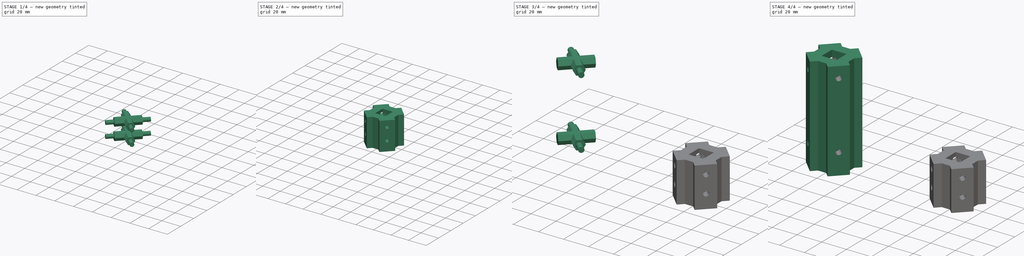
[diagram: build sequence overview — one tinted view per stage of 4, left to right]
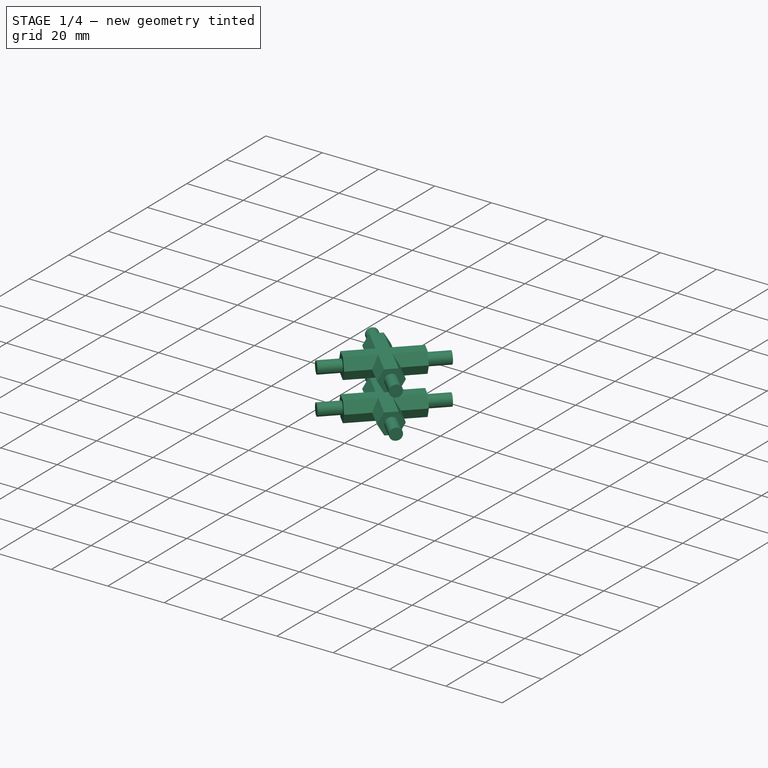
[diagram: stage 1 of 4 — iso view after this stage's code; geometry added in this stage tinted green]
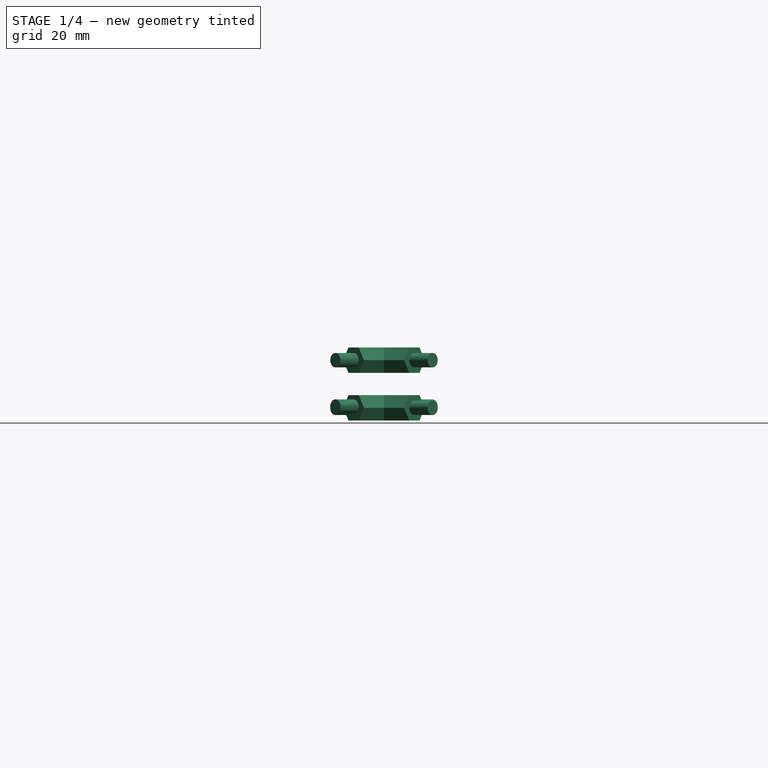
[diagram: stage 1 of 4 — front view after this stage's code; geometry added in this stage tinted green]
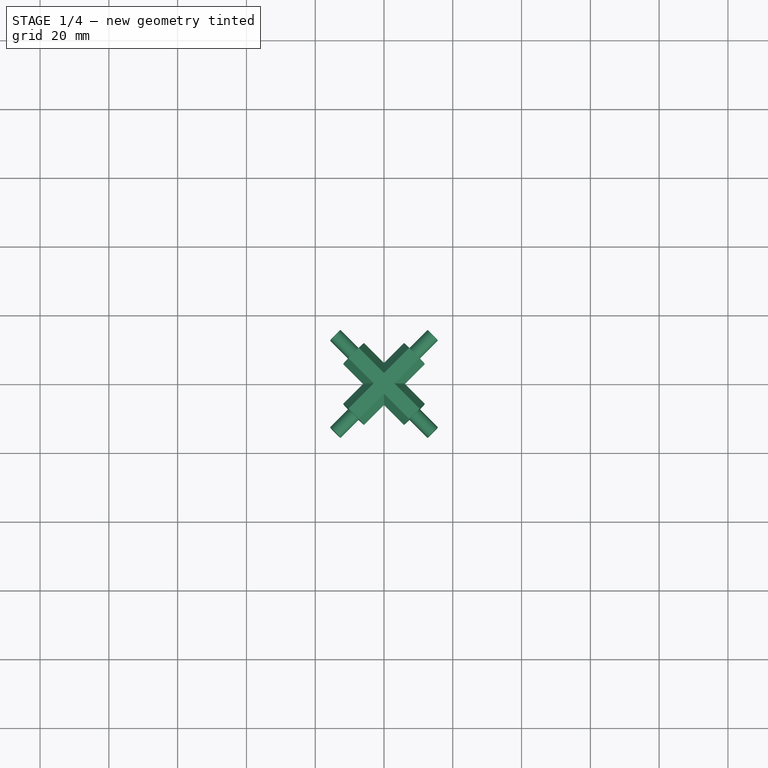
[diagram: stage 1 of 4 — top view after this stage's code; geometry added in this stage tinted green]
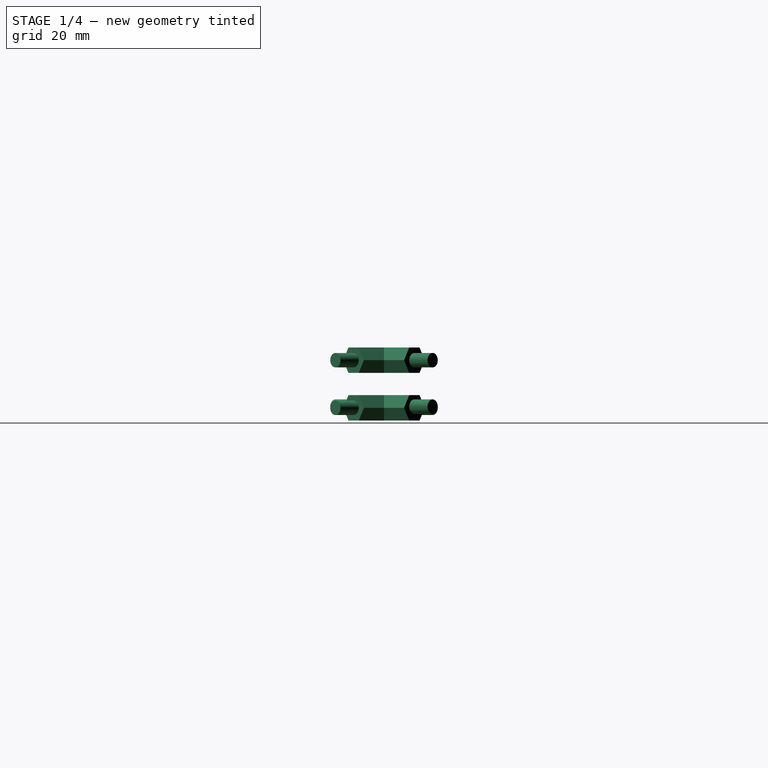
[diagram: stage 1 of 4 — right view after this stage's code; geometry added in this stage tinted green]
FCSTD DOCUMENT  (FreeCAD 0.15R4671 (Git))
Label: socles
License: All rights reserved
LicenseURL: http://fr.wikipedia.org/wiki/<copyright redacted>
objects: Sketcher::SketchObject×10, PartDesign::Pad×10, Part::MultiFuse×2, Part::Cut×2
note: 34 computed .brp shape members not serialized (recipe doc carries the construction recipe); baked Part::Feature solids carry a one-line shape summary decoded from their .brp

FEATURE [Sketcher::SketchObject] Sketch016
  Placement = pos=(100,0,0) rot=(0.862856,-0.357407,-0.357407;1.71777rad)
  sketch-geometry (2):
    g0: Circle CenterX=0 CenterY=25 CenterZ=0 NormalX=0 NormalY=0 NormalZ=1 Radius=2.1
    g1: Circle CenterX=0 CenterY=11.5 CenterZ=0 NormalX=0 NormalY=0 NormalZ=1 Radius=2.1
  constraints (6):
    c: Radius(g0) = 2.1
    c: PointOnObject(g0,g-2)
    c: DistanceY(g-1,g0) = 25
    c: PointOnObject(g1,g-2)
    c: DistanceY(g-1,g1) = 11.5
    c: Equal(g1,g0)
FEATURE [PartDesign::Pad] Pad016
  Length = 40
  Length2 = 100
  Midplane = true
  Placement = pos=(100,0,0) rot=(0.862856,-0.357407,-0.357407;1.71777rad)
  Sketch = -> Sketch016
  Type = 0
FEATURE [Sketcher::SketchObject] Sketch017
  Placement = pos=(100,0,0) rot=(0.862856,-0.357407,-0.357407;1.71777rad)
  sketch-geometry (14):
    g0: LineSegment StartX=2.125 StartY=7.46939 StartZ=0 EndX=4.25 EndY=11.15 EndZ=0
    g1: LineSegment StartX=4.25 StartY=11.15 StartZ=0 EndX=2.125 EndY=14.8306 EndZ=0
    g2: LineSegment StartX=2.125 StartY=14.8306 StartZ=0 EndX=-2.125 EndY=14.8306 EndZ=0
    g3: LineSegment StartX=-2.125 StartY=14.8306 StartZ=0 EndX=-4.25 EndY=11.15 EndZ=0
    g4: LineSegment StartX=-4.25 StartY=11.15 StartZ=0 EndX=-2.125 EndY=7.46939 EndZ=0
    g5: LineSegment StartX=-2.125 StartY=7.46939 StartZ=0 EndX=2.125 EndY=7.46939 EndZ=0
    g6: Circle [constr] CenterX=0 CenterY=11.15 CenterZ=0 NormalX=0 NormalY=0 NormalZ=1 Radius=4.25
    g7: LineSegment StartX=2.125 StartY=21.3194 StartZ=0 EndX=4.25 EndY=25 EndZ=0
    g8: LineSegment StartX=4.25 StartY=25 StartZ=0 EndX=2.125 EndY=28.6806 EndZ=0
    g9: LineSegment StartX=2.125 StartY=28.6806 StartZ=0 EndX=-2.125 EndY=28.6806 EndZ=0
    g10: LineSegment StartX=-2.125 StartY=28.6806 StartZ=0 EndX=-4.25 EndY=25 EndZ=0
    g11: LineSegment StartX=-4.25 StartY=25 StartZ=0 EndX=-2.125 EndY=21.3194 EndZ=0
    g12: LineSegment StartX=-2.125 StartY=21.3194 StartZ=0 EndX=2.125 EndY=21.3194 EndZ=0
    g13: Circle [constr] CenterX=0 CenterY=25 CenterZ=0 NormalX=0 NormalY=0 NormalZ=1 Radius=4.25
  constraints (35):
    c: Coincident(g0,g1)
    c: Coincident(g1,g2)
    c: Coincident(g2,g3)
    c: Coincident(g3,g4)
    c: Coincident(g4,g5)
    c: Coincident(g5,g0)
    c: Equal(g0, g1-g5) x5
    c: PointOnObject(g0,g6)
    c: PointOnObject(g1,g6)
    c: PointOnObject(g2,g6)
    c: PointOnObject(g3,g6)
    c: PointOnObject(g4,g6)
    c: PointOnObject(g5,g6)
    c: PointOnObject(g3,g-2)
    c: Horizontal(g5)
    c: PointOnObject(g6,g-2)
    c: Distance(g1,g6) = 4.25
    c: DistanceY(g-1,g6) = 11.15
    c: Coincident(g7,g8)
    c: Coincident(g8,g9)
    c: Coincident(g9,g10)
    c: Coincident(g10,g11)
    c: Coincident(g11,g12)
    c: Coincident(g12,g7)
    c: Equal(g7, g8-g12) x5
    c: PointOnObject(g7,g13)
    c: PointOnObject(g8,g13)
    c: PointOnObject(g9,g13)
    c: PointOnObject(g10,g13)
    c: PointOnObject(g11,g13)
    c: PointOnObject(g12,g13)
    c: Horizontal(g12)
    c: Distance(g13,g8) = 4.25
    c: PointOnObject(g13,g-2)
    c: DistanceY(g-1,g13) = 25
FEATURE [PartDesign::Pad] Pad017
  Length = 25
  Length2 = 100
  Midplane = true
  Placement = pos=(100,0,0) rot=(0.862856,-0.357407,-0.357407;1.71777rad)
  Sketch = -> Sketch017
  Type = 0
FEATURE [Sketcher::SketchObject] Sketch018
  Placement = pos=(100,0,0) rot=(0.862856,0.357407,0.357407;1.71777rad)
  sketch-geometry (2):
    g0: Circle CenterX=0 CenterY=25 CenterZ=0 NormalX=0 NormalY=0 NormalZ=1 Radius=2.1
    g1: Circle CenterX=0 CenterY=11.15 CenterZ=0 NormalX=0 NormalY=0 NormalZ=1 Radius=2.1
  constraints (6):
    c: Radius(g0) = 2.1
    c: PointOnObject(g0,g-2)
    c: DistanceY(g-1,g0) = 25
    c: PointOnObject(g1,g-2)
    c: DistanceY(g-1,g1) = 11.15
    c: Equal(g1,g0)
FEATURE [PartDesign::Pad] Pad018
  Length = 40
  Length2 = 100
  Midplane = true
  Placement = pos=(100,0,0) rot=(0.862856,0.357407,0.357407;1.71777rad)
  Sketch = -> Sketch018
  Type = 0
FEATURE [Sketcher::SketchObject] Sketch019
  Placement = pos=(100,0,0) rot=(0.862856,0.357407,0.357407;1.71777rad)
  sketch-geometry (14):
    g0: LineSegment StartX=2.125 StartY=7.46939 StartZ=0 EndX=4.25 EndY=11.15 EndZ=0
    g1: LineSegment StartX=4.25 StartY=11.15 StartZ=0 EndX=2.125 EndY=14.8306 EndZ=0
    g2: LineSegment StartX=2.125 StartY=14.8306 StartZ=0 EndX=-2.125 EndY=14.8306 EndZ=0
    g3: LineSegment StartX=-2.125 StartY=14.8306 StartZ=0 EndX=-4.25 EndY=11.15 EndZ=0
    g4: LineSegment StartX=-4.25 StartY=11.15 StartZ=0 EndX=-2.125 EndY=7.46939 EndZ=0
    g5: LineSegment StartX=-2.125 StartY=7.46939 StartZ=0 EndX=2.125 EndY=7.46939 EndZ=0
    g6: Circle [constr] CenterX=0 CenterY=11.15 CenterZ=0 NormalX=0 NormalY=0 NormalZ=1 Radius=4.25
    g7: LineSegment StartX=2.125 StartY=21.3194 StartZ=0 EndX=4.25 EndY=25 EndZ=0
    g8: LineSegment StartX=4.25 StartY=25 StartZ=0 EndX=2.125 EndY=28.6806 EndZ=0
    g9: LineSegment StartX=2.125 StartY=28.6806 StartZ=0 EndX=-2.125 EndY=28.6806 EndZ=0
    g10: LineSegment StartX=-2.125 StartY=28.6806 StartZ=0 EndX=-4.25 EndY=25 EndZ=0
    g11: LineSegment StartX=-4.25 StartY=25 StartZ=0 EndX=-2.125 EndY=21.3194 EndZ=0
    g12: LineSegment StartX=-2.125 StartY=21.3194 StartZ=0 EndX=2.125 EndY=21.3194 EndZ=0
    g13: Circle [constr] CenterX=0 CenterY=25 CenterZ=0 NormalX=0 NormalY=0 NormalZ=1 Radius=4.25
  constraints (35):
    c: Coincident(g0,g1)
    c: Coincident(g1,g2)
    c: Coincident(g2,g3)
    c: Coincident(g3,g4)
    c: Coincident(g4,g5)
    c: Coincident(g5,g0)
    c: Equal(g0, g1-g5) x5
    c: PointOnObject(g0,g6)
    c: PointOnObject(g1,g6)
    c: PointOnObject(g2,g6)
    c: PointOnObject(g3,g6)
    c: PointOnObject(g4,g6)
    c: PointOnObject(g5,g6)
    c: PointOnObject(g3,g-2)
    c: Horizontal(g5)
    c: PointOnObject(g6,g-2)
    c: Distance(g1,g6) = 4.25
    c: DistanceY(g-1,g6) = 11.15
    c: Coincident(g7,g8)
    c: Coincident(g8,g9)
    c: Coincident(g9,g10)
    c: Coincident(g10,g11)
    c: Coincident(g11,g12)
    c: Coincident(g12,g7)
    c: Equal(g7, g8-g12) x5
    c: PointOnObject(g7,g13)
    c: PointOnObject(g8,g13)
    c: PointOnObject(g9,g13)
    c: PointOnObject(g10,g13)
    c: PointOnObject(g11,g13)
    c: PointOnObject(g12,g13)
    c: Horizontal(g12)
    c: Distance(g8,g13) = 4.25
    c: PointOnObject(g13,g-2)
    c: DistanceY(g-1,g13) = 25
FEATURE [PartDesign::Pad] Pad019
  Length = 25
  Length2 = 100
  Midplane = true
  Placement = pos=(100,0,0) rot=(0.862856,0.357407,0.357407;1.71777rad)
  Sketch = -> Sketch019
  Type = 0
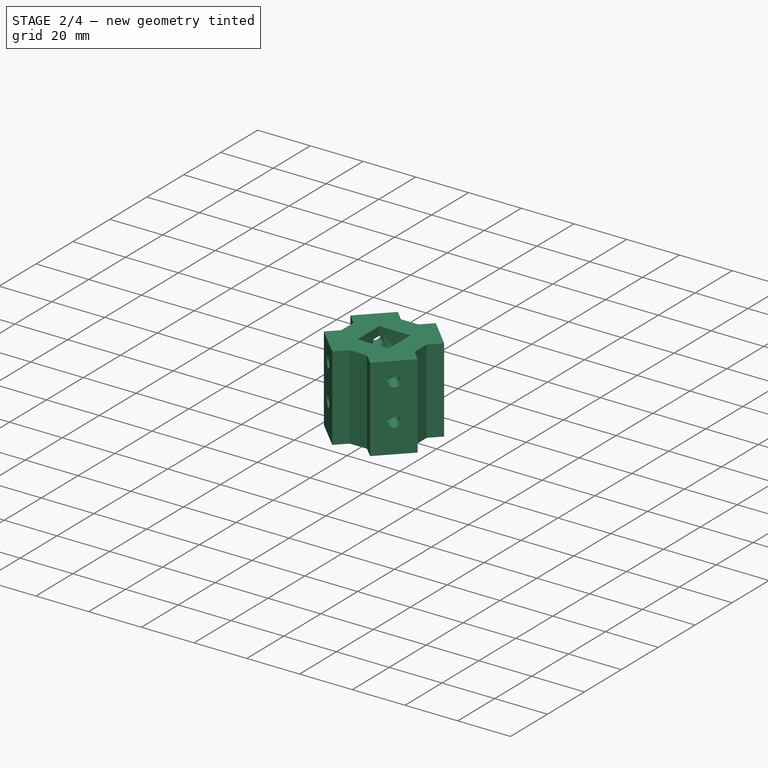
[diagram: stage 2 of 4 — iso view after this stage's code; geometry added in this stage tinted green]
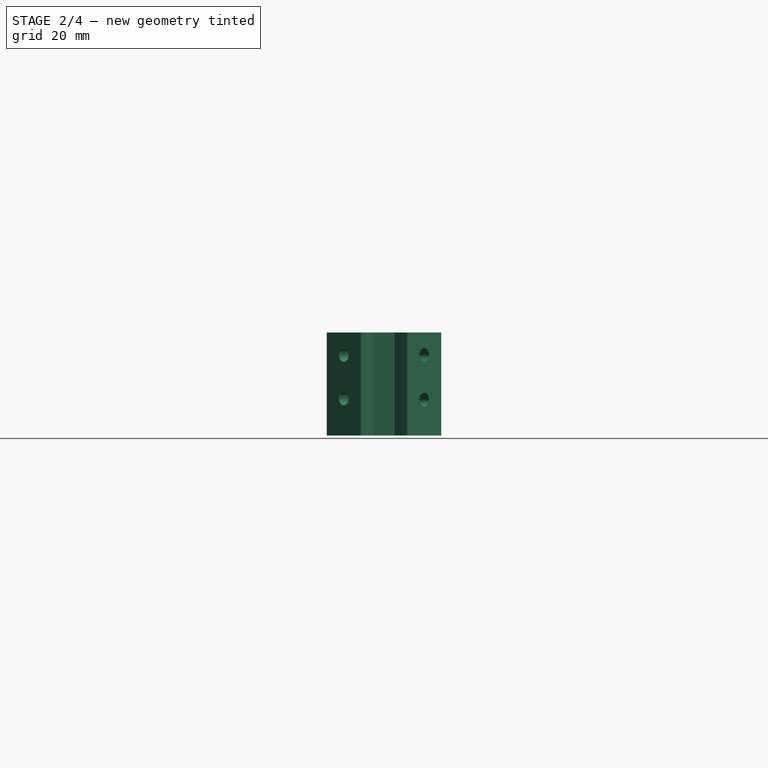
[diagram: stage 2 of 4 — front view after this stage's code; geometry added in this stage tinted green]
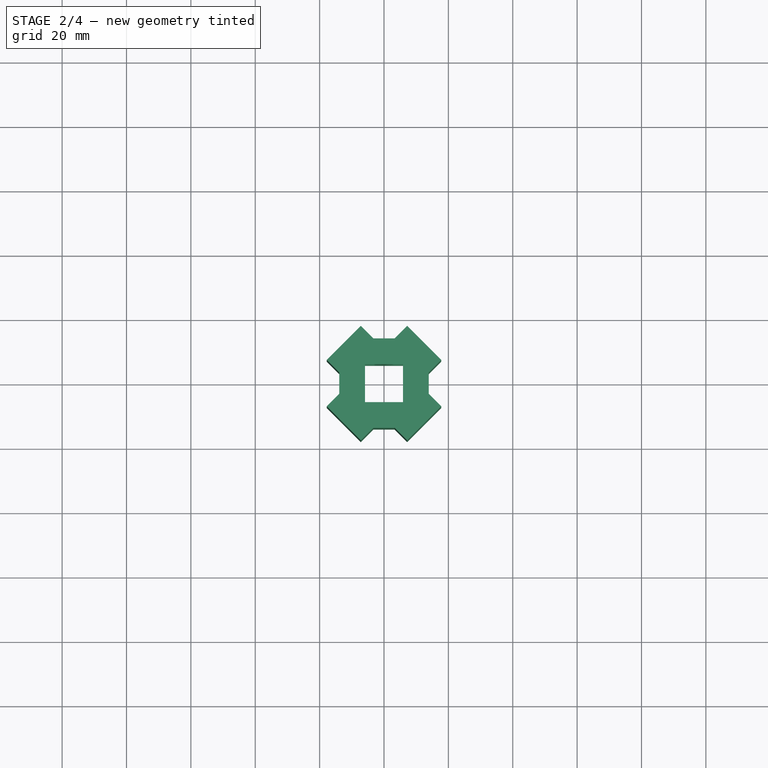
[diagram: stage 2 of 4 — top view after this stage's code; geometry added in this stage tinted green]
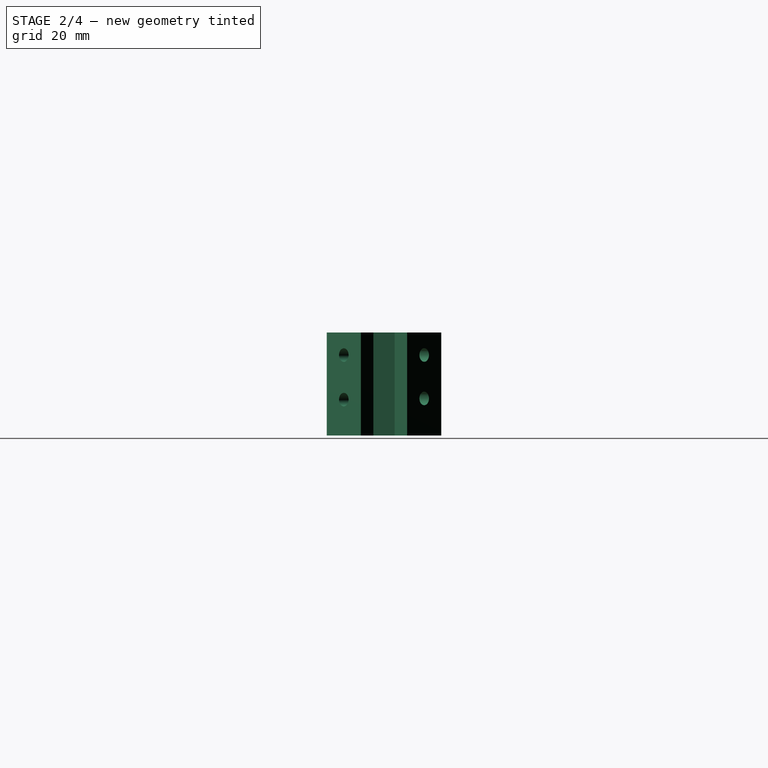
[diagram: stage 2 of 4 — right view after this stage's code; geometry added in this stage tinted green]
FEATURE [Sketcher::SketchObject] Sketch015
  Placement = pos=(100,0,0) rot=(0,0,1;0rad)
  sketch-geometry (20):
    g0: LineSegment StartX=-5.9 StartY=5.9 StartZ=0 EndX=5.9 EndY=5.9 EndZ=0
    g1: LineSegment StartX=5.9 StartY=5.9 StartZ=0 EndX=5.9 EndY=-5.9 EndZ=0
    g2: LineSegment StartX=5.9 StartY=-5.9 StartZ=0 EndX=-5.9 EndY=-5.9 EndZ=0
    g3: LineSegment StartX=-5.9 StartY=-5.9 StartZ=0 EndX=-5.9 EndY=5.9 EndZ=0
    g4: LineSegment StartX=-13.9 StartY=3.2934 StartZ=0 EndX=-13.9 EndY=-3.2934 EndZ=0
    g5: LineSegment StartX=-3.2934 StartY=-13.9 StartZ=0 EndX=3.2934 EndY=-13.9 EndZ=0
    g6: LineSegment StartX=13.9 StartY=-3.2934 StartZ=0 EndX=13.9 EndY=3.2934 EndZ=0
    g7: LineSegment StartX=3.2934 StartY=13.9 StartZ=0 EndX=-3.2934 EndY=13.9 EndZ=0
    g8: LineSegment StartX=-3.2934 StartY=13.9 StartZ=0 EndX=-7.18249 EndY=17.7891 EndZ=0
    g9: LineSegment StartX=-7.18249 StartY=17.7891 StartZ=0 EndX=-17.7891 EndY=7.18249 EndZ=0
    g10: LineSegment StartX=-17.7891 StartY=7.18249 StartZ=0 EndX=-13.9 EndY=3.2934 EndZ=0
    g11: LineSegment StartX=-13.9 StartY=-3.2934 StartZ=0 EndX=-17.7891 EndY=-7.18249 EndZ=0
    g12: LineSegment StartX=-17.7891 StartY=-7.18249 StartZ=0 EndX=-7.18249 EndY=-17.7891 EndZ=0
    g13: LineSegment StartX=-7.18249 StartY=-17.7891 StartZ=0 EndX=-3.2934 EndY=-13.9 EndZ=0
    g14: LineSegment StartX=3.2934 StartY=-13.9 StartZ=0 EndX=7.18249 EndY=-17.7891 EndZ=0
    g15: LineSegment StartX=7.18249 StartY=-17.7891 StartZ=0 EndX=17.7891 EndY=-7.18249 EndZ=0
    g16: LineSegment StartX=17.7891 StartY=-7.18249 StartZ=0 EndX=13.9 EndY=-3.2934 EndZ=0
    g17: LineSegment StartX=3.2934 StartY=13.9 StartZ=0 EndX=7.18249 EndY=17.7891 EndZ=0
    g18: LineSegment StartX=7.18249 StartY=17.7891 StartZ=0 EndX=17.7891 EndY=7.18249 EndZ=0
    g19: LineSegment StartX=13.9 StartY=3.2934 StartZ=0 EndX=17.7891 EndY=7.18249 EndZ=0
  constraints (60):
    c: Coincident(g0,g1)
    c: Coincident(g1,g2)
    c: Coincident(g2,g3)
    c: Coincident(g3,g0)
    c: Horizontal(g0)
    c: Vertical(g1)
    c: Vertical(g3)
    c: Symmetric(g1,g0,g-1)
    c: DistanceX(g0) = 11.8
    c: Vertical(g4)
    c: Horizontal(g5)
    c: Vertical(g6)
    c: Horizontal(g7)
    c: DistanceY(g7,g0) = -8
    c: DistanceY(g5,g2) = 8
    c: DistanceX(g2,g4) = -8
    c: DistanceX(g1,g6) = 8
    c: Equal(g5,g7)
    c: Equal(g7,g4)
    c: Equal(g4,g6)
    c: Coincident(g7,g8)
    c: Coincident(g8,g9)
    c: Coincident(g9,g10)
    c: Coincident(g10,g4)
    c: Coincident(g4,g11)
    c: Coincident(g11,g12)
    c: Coincident(g12,g13)
    c: Coincident(g13,g5)
    c: Coincident(g5,g14)
    c: Coincident(g14,g15)
    c: Coincident(g15,g16)
    c: Coincident(g16,g6)
    c: Coincident(g7,g17)
    c: Coincident(g17,g18)
    c: Coincident(g6,g19)
    c: Coincident(g19,g18)
    c: Distance(g9) = 15
    c: Distance(g10) = 5.5
    c: Equal(g0,g3)
    c: Equal(g3,g1)
    c: Equal(g1,g2)
    c: Symmetric(g7,g7,g-2)
    c: Perpendicular(g10,g9)
    c: Perpendicular(g8,g9)
    c: Perpendicular(g18,g17)
    c: Perpendicular(g18,g19)
    c: Perpendicular(g15,g16)
    c: Perpendicular(g15,g14)
    c: Perpendicular(g12,g13)
    c: Perpendicular(g12,g11)
    c: Equal(g10,g8)
    c: Equal(g8,g17)
    c: Equal(g17,g19)
    c: Equal(g19,g16)
    c: Equal(g16,g14)
    c: Equal(g14,g13)
    c: Equal(g13,g11)
    c: Equal(g9,g18)
    c: Equal(g18,g15)
    c: Equal(g15,g12)
FEATURE [PartDesign::Pad] Pad015
  Length = 32
  Length2 = 100
  Placement = pos=(100,0,0) rot=(0,0,1;0rad)
  Sketch = -> Sketch015
  Type = 0
FEATURE [Part::MultiFuse] Fusion002
  Shapes = -> [Pad016,Pad019,Pad018,Pad017]
FEATURE [Part::Cut] Cut003  label="petit_socle"
  Base = -> Pad015
  Placement = pos=(100,0,0) rot=(0,0,1;0rad)
  Tool = -> Fusion002
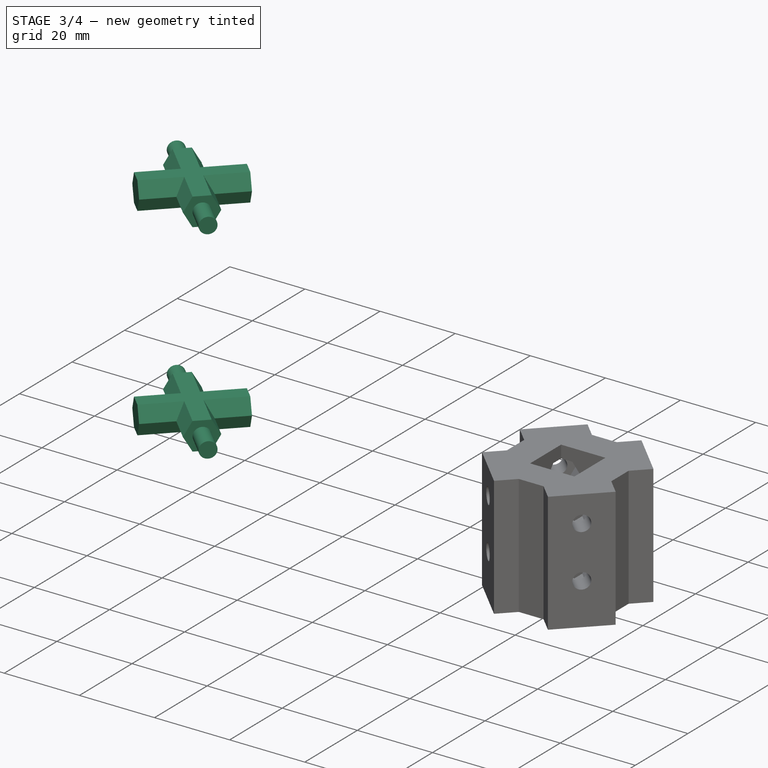
[diagram: stage 3 of 4 — iso view after this stage's code; geometry added in this stage tinted green]
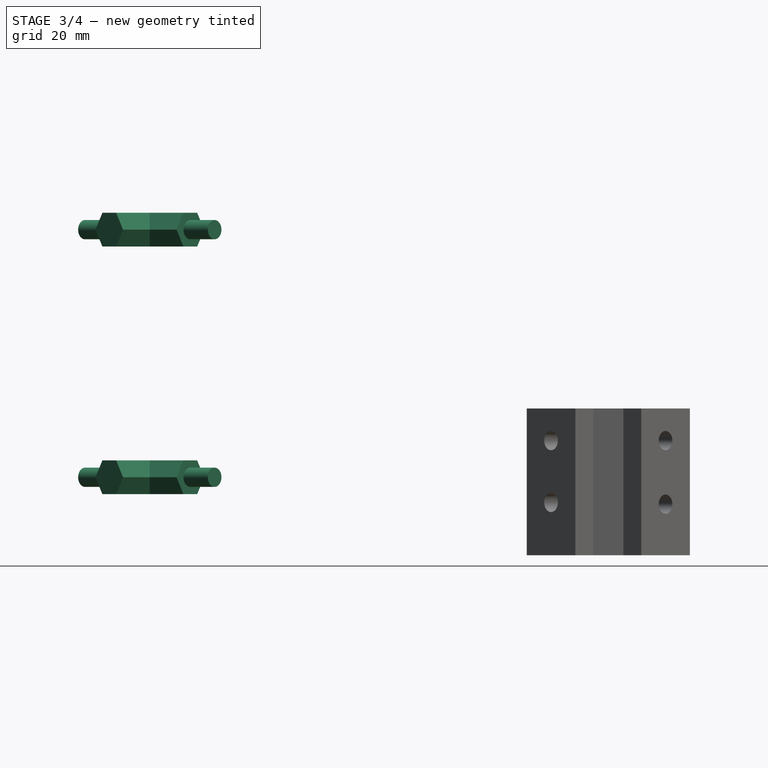
[diagram: stage 3 of 4 — front view after this stage's code; geometry added in this stage tinted green]
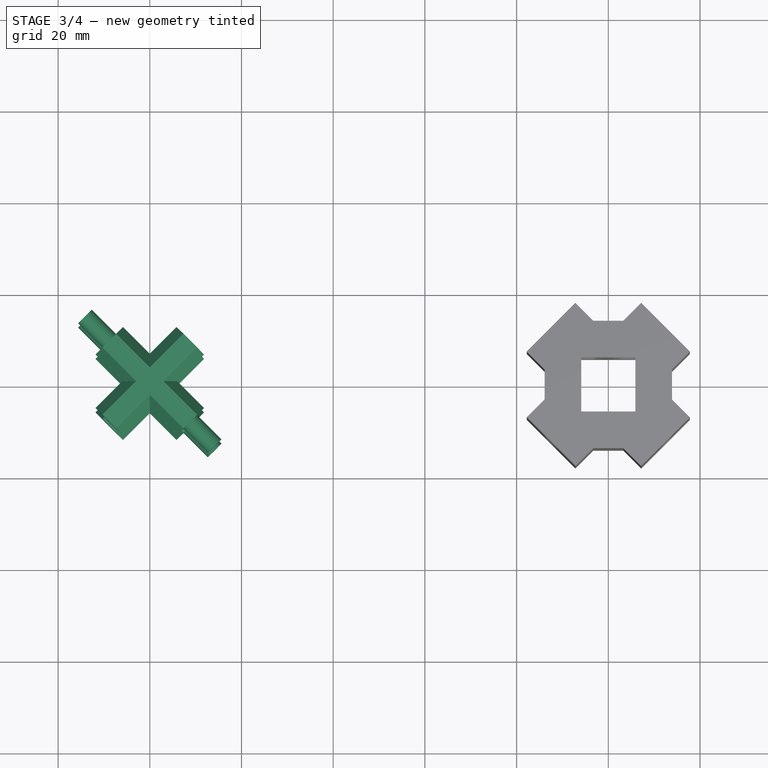
[diagram: stage 3 of 4 — top view after this stage's code; geometry added in this stage tinted green]
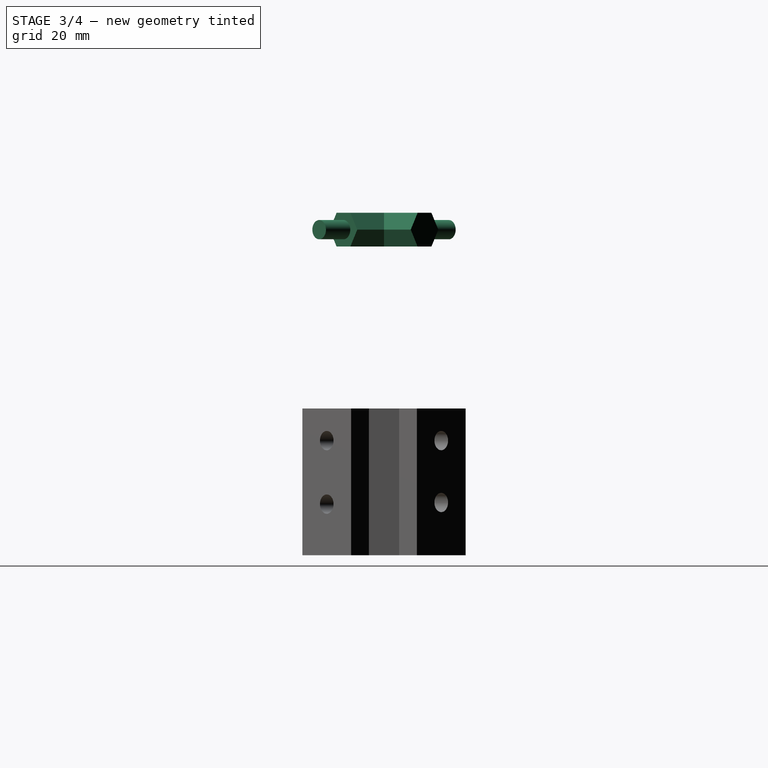
[diagram: stage 3 of 4 — right view after this stage's code; geometry added in this stage tinted green]
FEATURE [Sketcher::SketchObject] Sketch012
  Placement = pos=(100,0,0) rot=(0.862856,-0.357407,-0.357407;1.71777rad)
  sketch-geometry (14):
    g0: LineSegment StartX=2.125 StartY=67.3194 StartZ=0 EndX=4.25 EndY=71 EndZ=0
    g1: LineSegment StartX=4.25 StartY=71 StartZ=0 EndX=2.125 EndY=74.6806 EndZ=0
    g2: LineSegment StartX=2.125 StartY=74.6806 StartZ=0 EndX=-2.125 EndY=74.6806 EndZ=0
    g3: LineSegment StartX=-2.125 StartY=74.6806 StartZ=0 EndX=-4.25 EndY=71 EndZ=0
    g4: LineSegment StartX=-4.25 StartY=71 StartZ=0 EndX=-2.125 EndY=67.3194 EndZ=0
    g5: LineSegment StartX=-2.125 StartY=67.3194 StartZ=0 EndX=2.125 EndY=67.3194 EndZ=0
    g6: Circle [constr] CenterX=0 CenterY=71 CenterZ=0 NormalX=0 NormalY=0 NormalZ=1 Radius=4.25
    g7: LineSegment StartX=2.125 StartY=13.3194 StartZ=0 EndX=4.25 EndY=17 EndZ=0
    g8: LineSegment StartX=4.25 StartY=17 StartZ=0 EndX=2.125 EndY=20.6806 EndZ=0
    g9: LineSegment StartX=2.125 StartY=20.6806 StartZ=0 EndX=-2.125 EndY=20.6806 EndZ=0
    g10: LineSegment StartX=-2.125 StartY=20.6806 StartZ=0 EndX=-4.25 EndY=17 EndZ=0
    g11: LineSegment StartX=-4.25 StartY=17 StartZ=0 EndX=-2.125 EndY=13.3194 EndZ=0
    g12: LineSegment StartX=-2.125 StartY=13.3194 StartZ=0 EndX=2.125 EndY=13.3194 EndZ=0
    g13: Circle [constr] CenterX=0 CenterY=17 CenterZ=0 NormalX=0 NormalY=0 NormalZ=1 Radius=4.25
  constraints (36):
    c: Coincident(g0,g1)
    c: Coincident(g1,g2)
    c: Coincident(g2,g3)
    c: Coincident(g3,g4)
    c: Coincident(g4,g5)
    c: Coincident(g5,g0)
    c: Equal(g0, g1-g5) x5
    c: PointOnObject(g0,g6)
    c: PointOnObject(g1,g6)
    c: PointOnObject(g2,g6)
    c: PointOnObject(g3,g6)
    c: PointOnObject(g4,g6)
    c: PointOnObject(g5,g6)
    c: PointOnObject(g3,g-2)
    c: Horizontal(g5)
    c: PointOnObject(g6,g-2)
    c: Distance(g1,g6) = 4.25
    c: DistanceY(g-1,g6) = 71
    c: Coincident(g7,g8)
    c: Coincident(g8,g9)
    c: Coincident(g9,g10)
    c: Coincident(g10,g11)
    c: Coincident(g11,g12)
    c: Coincident(g12,g7)
    c: Equal(g7, g8-g12) x5
    c: PointOnObject(g7,g13)
    c: PointOnObject(g8,g13)
    c: PointOnObject(g9,g13)
    c: PointOnObject(g10,g13)
    c: PointOnObject(g11,g13)
    c: PointOnObject(g12,g13)
    c: PointOnObject(g10,g-2)
    c: Horizontal(g12)
    c: PointOnObject(g13,g-2)
    c: Distance(g8,g13) = 4.25
    c: DistanceY(g-1,g13) = 17
FEATURE [PartDesign::Pad] Pad012
  Length = 25
  Length2 = 100
  Midplane = true
  Placement = pos=(100,0,0) rot=(0.862856,-0.357407,-0.357407;1.71777rad)
  Sketch = -> Sketch012
  Type = 0
FEATURE [Sketcher::SketchObject] Sketch013
  Placement = pos=(100,0,0) rot=(0.862856,0.357407,0.357407;1.71777rad)
  sketch-geometry (2):
    g0: Circle CenterX=0 CenterY=71 CenterZ=0 NormalX=0 NormalY=0 NormalZ=1 Radius=2.1
    g1: Circle CenterX=0 CenterY=17 CenterZ=0 NormalX=0 NormalY=0 NormalZ=1 Radius=2.1
  constraints (6):
    c: Radius(g0) = 2.1
    c: PointOnObject(g0,g-2)
    c: DistanceY(g-1,g0) = 71
    c: PointOnObject(g1,g-2)
    c: DistanceY(g-1,g1) = 17
    c: Equal(g1,g0)
FEATURE [PartDesign::Pad] Pad013
  Length = 40
  Length2 = 100
  Midplane = true
  Placement = pos=(100,0,0) rot=(0.862856,0.357407,0.357407;1.71777rad)
  Sketch = -> Sketch013
  Type = 0
FEATURE [Sketcher::SketchObject] Sketch014
  Placement = pos=(100,0,0) rot=(0.862856,0.357407,0.357407;1.71777rad)
  sketch-geometry (14):
    g0: LineSegment StartX=2.125 StartY=67.3194 StartZ=0 EndX=4.25 EndY=71 EndZ=0
    g1: LineSegment StartX=4.25 StartY=71 StartZ=0 EndX=2.125 EndY=74.6806 EndZ=0
    g2: LineSegment StartX=2.125 StartY=74.6806 StartZ=0 EndX=-2.125 EndY=74.6806 EndZ=0
    g3: LineSegment StartX=-2.125 StartY=74.6806 StartZ=0 EndX=-4.25 EndY=71 EndZ=0
    g4: LineSegment StartX=-4.25 StartY=71 StartZ=0 EndX=-2.125 EndY=67.3194 EndZ=0
    g5: LineSegment StartX=-2.125 StartY=67.3194 StartZ=0 EndX=2.125 EndY=67.3194 EndZ=0
    g6: Circle [constr] CenterX=0 CenterY=71 CenterZ=0 NormalX=0 NormalY=0 NormalZ=1 Radius=4.25
    g7: LineSegment StartX=2.125 StartY=13.3194 StartZ=0 EndX=4.25 EndY=17 EndZ=0
    g8: LineSegment StartX=4.25 StartY=17 StartZ=0 EndX=2.125 EndY=20.6806 EndZ=0
    g9: LineSegment StartX=2.125 StartY=20.6806 StartZ=0 EndX=-2.125 EndY=20.6806 EndZ=0
    g10: LineSegment StartX=-2.125 StartY=20.6806 StartZ=0 EndX=-4.25 EndY=17 EndZ=0
    g11: LineSegment StartX=-4.25 StartY=17 StartZ=0 EndX=-2.125 EndY=13.3194 EndZ=0
    g12: LineSegment StartX=-2.125 StartY=13.3194 StartZ=0 EndX=2.125 EndY=13.3194 EndZ=0
    g13: Circle [constr] CenterX=0 CenterY=17 CenterZ=0 NormalX=0 NormalY=0 NormalZ=1 Radius=4.25
  constraints (36):
    c: Coincident(g0,g1)
    c: Coincident(g1,g2)
    c: Coincident(g2,g3)
    c: Coincident(g3,g4)
    c: Coincident(g4,g5)
    c: Coincident(g5,g0)
    c: Equal(g0, g1-g5) x5
    c: PointOnObject(g0,g6)
    c: PointOnObject(g1,g6)
    c: PointOnObject(g2,g6)
    c: PointOnObject(g3,g6)
    c: PointOnObject(g4,g6)
    c: PointOnObject(g5,g6)
    c: PointOnObject(g3,g-2)
    c: Horizontal(g5)
    c: PointOnObject(g6,g-2)
    c: Distance(g1,g6) = 4.25
    c: DistanceY(g-1,g6) = 71
    c: Coincident(g7,g8)
    c: Coincident(g8,g9)
    c: Coincident(g9,g10)
    c: Coincident(g10,g11)
    c: Coincident(g11,g12)
    c: Coincident(g12,g7)
    c: Equal(g7, g8-g12) x5
    c: PointOnObject(g7,g13)
    c: PointOnObject(g8,g13)
    c: PointOnObject(g9,g13)
    c: PointOnObject(g10,g13)
    c: PointOnObject(g11,g13)
    c: PointOnObject(g12,g13)
    c: PointOnObject(g10,g-2)
    c: Horizontal(g12)
    c: PointOnObject(g13,g-2)
    c: Distance(g8,g13) = 4.25
    c: DistanceY(g-1,g13) = 17
FEATURE [PartDesign::Pad] Pad014
  Length = 25
  Length2 = 100
  Midplane = true
  Placement = pos=(100,0,0) rot=(0.862856,0.357407,0.357407;1.71777rad)
  Sketch = -> Sketch014
  Type = 0
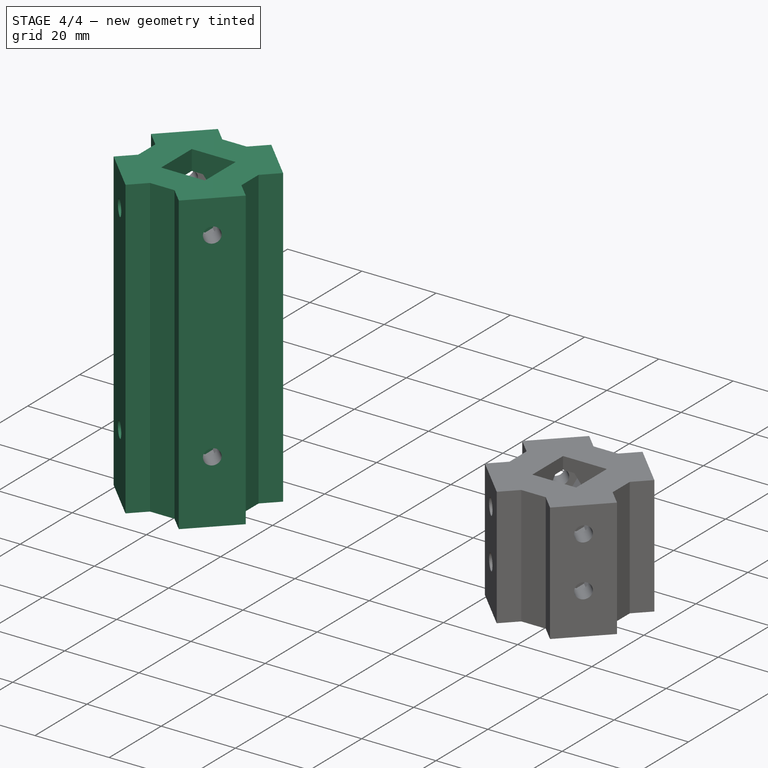
[diagram: stage 4 of 4 — iso view after this stage's code; geometry added in this stage tinted green]
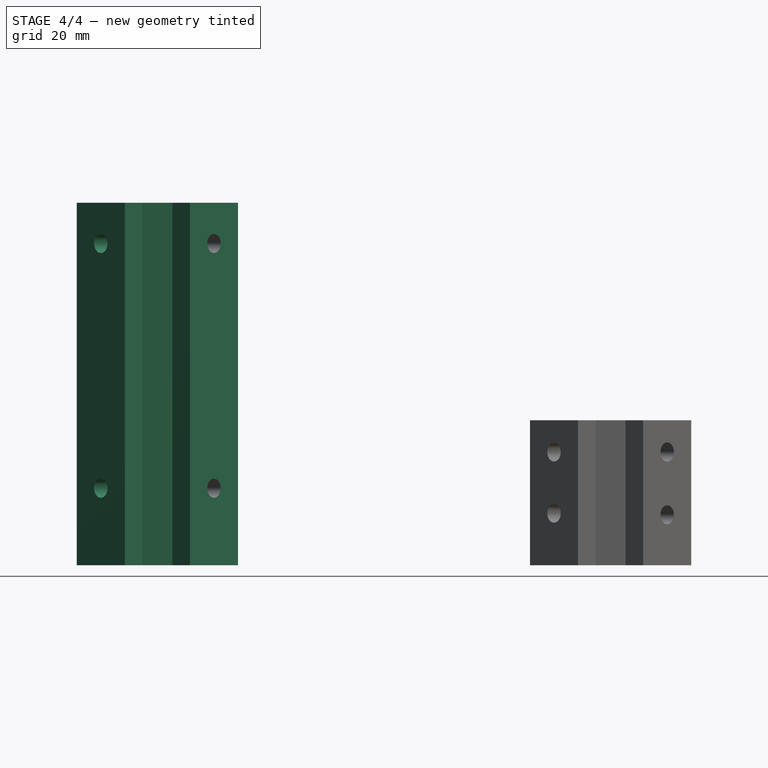
[diagram: stage 4 of 4 — front view after this stage's code; geometry added in this stage tinted green]
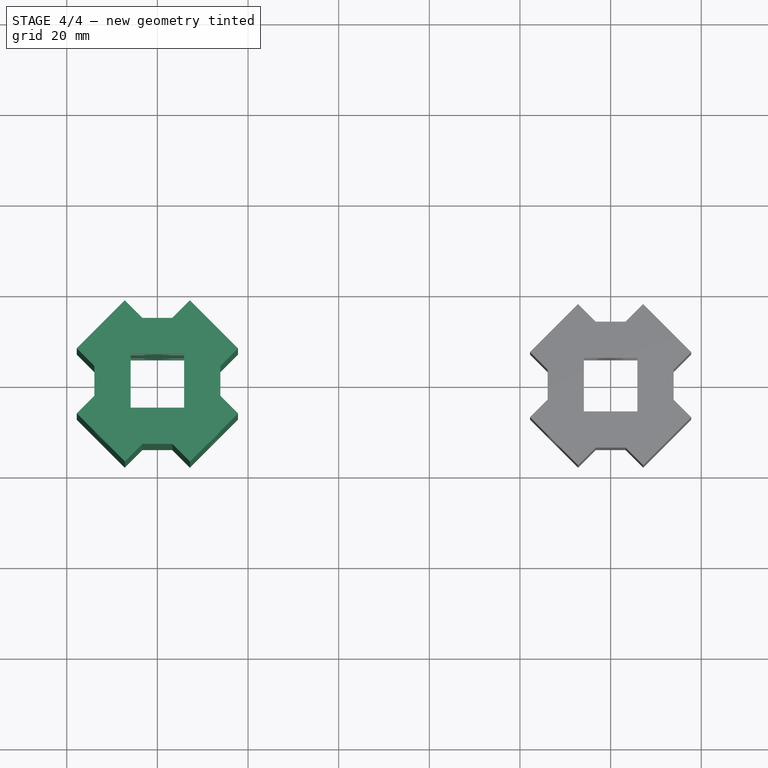
[diagram: stage 4 of 4 — top view after this stage's code; geometry added in this stage tinted green]
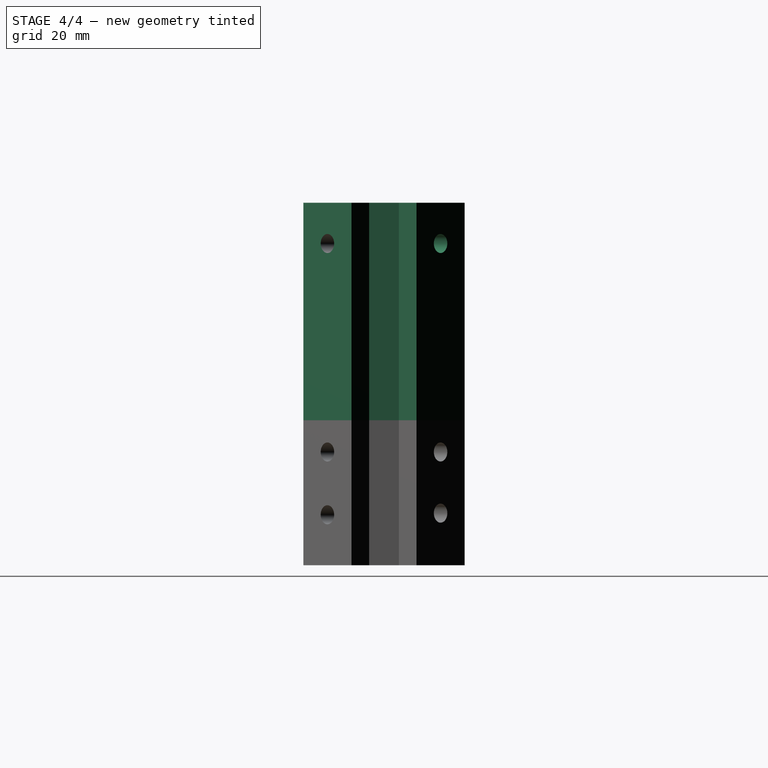
[diagram: stage 4 of 4 — right view after this stage's code; geometry added in this stage tinted green]
FEATURE [Sketcher::SketchObject] Sketch001
  Placement = pos=(100,0,0) rot=(0,0,1;0rad)
  sketch-geometry (20):
    g0: LineSegment StartX=-5.9 StartY=5.9 StartZ=0 EndX=5.9 EndY=5.9 EndZ=0
    g1: LineSegment StartX=5.9 StartY=5.9 StartZ=0 EndX=5.9 EndY=-5.9 EndZ=0
    g2: LineSegment StartX=5.9 StartY=-5.9 StartZ=0 EndX=-5.9 EndY=-5.9 EndZ=0
    g3: LineSegment StartX=-5.9 StartY=-5.9 StartZ=0 EndX=-5.9 EndY=5.9 EndZ=0
    g4: LineSegment StartX=-13.9 StartY=3.2934 StartZ=0 EndX=-13.9 EndY=-3.2934 EndZ=0
    g5: LineSegment StartX=-3.2934 StartY=-13.9 StartZ=0 EndX=3.2934 EndY=-13.9 EndZ=0
    g6: LineSegment StartX=13.9 StartY=-3.2934 StartZ=0 EndX=13.9 EndY=3.2934 EndZ=0
    g7: LineSegment StartX=3.2934 StartY=13.9 StartZ=0 EndX=-3.2934 EndY=13.9 EndZ=0
    g8: LineSegment StartX=-3.2934 StartY=13.9 StartZ=0 EndX=-7.18249 EndY=17.7891 EndZ=0
    g9: LineSegment StartX=-7.18249 StartY=17.7891 StartZ=0 EndX=-17.7891 EndY=7.18249 EndZ=0
    g10: LineSegment StartX=-17.7891 StartY=7.18249 StartZ=0 EndX=-13.9 EndY=3.2934 EndZ=0
    g11: LineSegment StartX=-13.9 StartY=-3.2934 StartZ=0 EndX=-17.7891 EndY=-7.18249 EndZ=0
    g12: LineSegment StartX=-17.7891 StartY=-7.18249 StartZ=0 EndX=-7.18249 EndY=-17.7891 EndZ=0
    g13: LineSegment StartX=-7.18249 StartY=-17.7891 StartZ=0 EndX=-3.2934 EndY=-13.9 EndZ=0
    g14: LineSegment StartX=3.2934 StartY=-13.9 StartZ=0 EndX=7.18249 EndY=-17.7891 EndZ=0
    g15: LineSegment StartX=7.18249 StartY=-17.7891 StartZ=0 EndX=17.7891 EndY=-7.18249 EndZ=0
    g16: LineSegment StartX=17.7891 StartY=-7.18249 StartZ=0 EndX=13.9 EndY=-3.2934 EndZ=0
    g17: LineSegment StartX=3.2934 StartY=13.9 StartZ=0 EndX=7.18249 EndY=17.7891 EndZ=0
    g18: LineSegment StartX=7.18249 StartY=17.7891 StartZ=0 EndX=17.7891 EndY=7.18249 EndZ=0
    g19: LineSegment StartX=13.9 StartY=3.2934 StartZ=0 EndX=17.7891 EndY=7.18249 EndZ=0
  constraints (63):
    c: Coincident(g0,g1)
    c: Coincident(g1,g2)
    c: Coincident(g2,g3)
    c: Coincident(g3,g0)
    c: Horizontal(g0)
    c: Vertical(g1)
    c: Vertical(g3)
    c: Symmetric(g1,g0,g-1)
    c: DistanceX(g0) = 11.8
    c: Vertical(g4)
    c: Horizontal(g5)
    c: Vertical(g6)
    c: Horizontal(g7)
    c: DistanceY(g7,g0) = -8
    c: DistanceY(g5,g2) = 8
    c: DistanceX(g2,g4) = -8
    c: DistanceX(g1,g6) = 8
    c: Equal(g5,g7)
    c: Equal(g7,g4)
    c: Equal(g4,g6)
    c: Coincident(g7,g8)
    c: Coincident(g8,g9)
    c: Coincident(g9,g10)
    c: Coincident(g10,g4)
    c: Coincident(g4,g11)
    c: Coincident(g11,g12)
    c: Coincident(g12,g13)
    c: Coincident(g13,g5)
    c: Coincident(g5,g14)
    c: Coincident(g14,g15)
    c: Coincident(g15,g16)
    c: Coincident(g16,g6)
    c: Coincident(g7,g17)
    c: Coincident(g17,g18)
    c: Coincident(g6,g19)
    c: Coincident(g19,g18)
    c: Distance(g9) = 15
    c: Equal(g9,g18)
    c: Equal(g18,g15)
    c: Equal(g15,g12)
    c: Distance(g10) = 5.5
    c: Equal(g0,g3)
    c: Equal(g3,g1)
    c: Equal(g1,g2)
    c: Symmetric(g7,g7,g-2)
    c: Perpendicular(g12,g11)
    c: Perpendicular(g12,g13)
    c: Perpendicular(g15,g14)
    c: Perpendicular(g15,g16)
    c: Perpendicular(g18,g19)
    c: Perpendicular(g18,g17)
    c: Perpendicular(g9,g8)
    c: Perpendicular(g10,g9)
    c: Equal(g9,g18)
    c: Equal(g18,g15)
    c: Equal(g15,g12)
    c: Equal(g10,g8)
    c: Equal(g8,g17)
    c: Equal(g17,g19)
    c: Equal(g19,g16)
    c: Equal(g16,g14)
    c: Equal(g14,g13)
    c: Equal(g13,g11)
FEATURE [PartDesign::Pad] Pad001
  Length = 80
  Length2 = 100
  Placement = pos=(100,0,0) rot=(0,0,1;0rad)
  Sketch = -> Sketch001
  Type = 0
FEATURE [Sketcher::SketchObject] Sketch008
  Placement = pos=(100,0,0) rot=(0.862856,-0.357407,-0.357407;1.71777rad)
  sketch-geometry (2):
    g0: Circle CenterX=0 CenterY=71 CenterZ=0 NormalX=0 NormalY=0 NormalZ=1 Radius=2.1
    g1: Circle CenterX=0 CenterY=17 CenterZ=0 NormalX=0 NormalY=0 NormalZ=1 Radius=2.1
  constraints (6):
    c: Radius(g0) = 2.1
    c: PointOnObject(g0,g-2)
    c: DistanceY(g-1,g0) = 71
    c: PointOnObject(g1,g-2)
    c: DistanceY(g-1,g1) = 17
    c: Equal(g1,g0)
FEATURE [PartDesign::Pad] Pad008
  Length = 40
  Length2 = 100
  Midplane = true
  Placement = pos=(100,0,0) rot=(0.862856,-0.357407,-0.357407;1.71777rad)
  Sketch = -> Sketch008
  Type = 0
FEATURE [Part::MultiFuse] Fusion001
  Shapes = -> [Pad008,Pad014,Pad013,Pad012]
FEATURE [Part::Cut] Cut002  label="grand_socle"
  Base = -> Pad001
  Tool = -> Fusion001
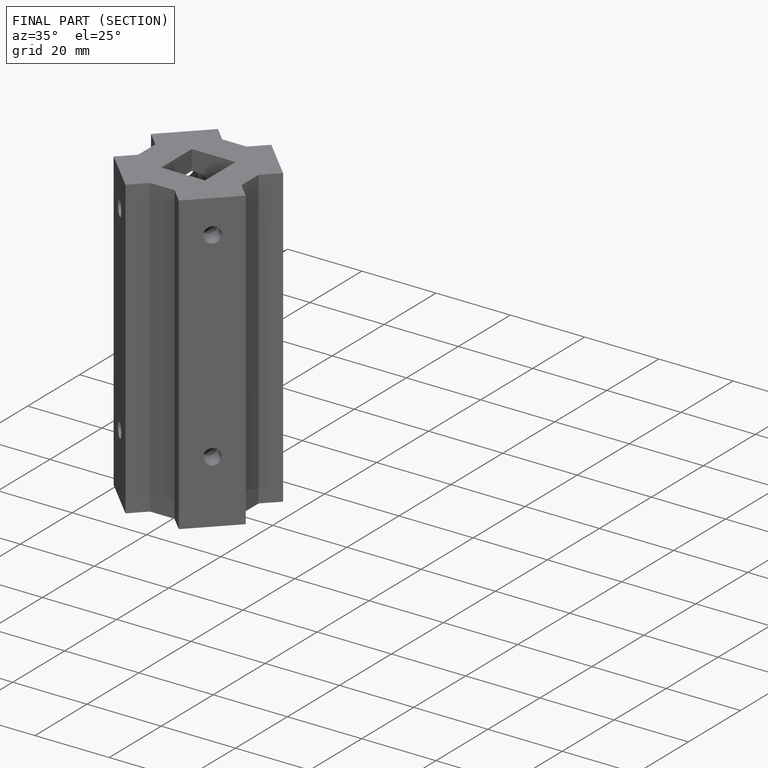
[diagram: finished part — half-section view (interior)]
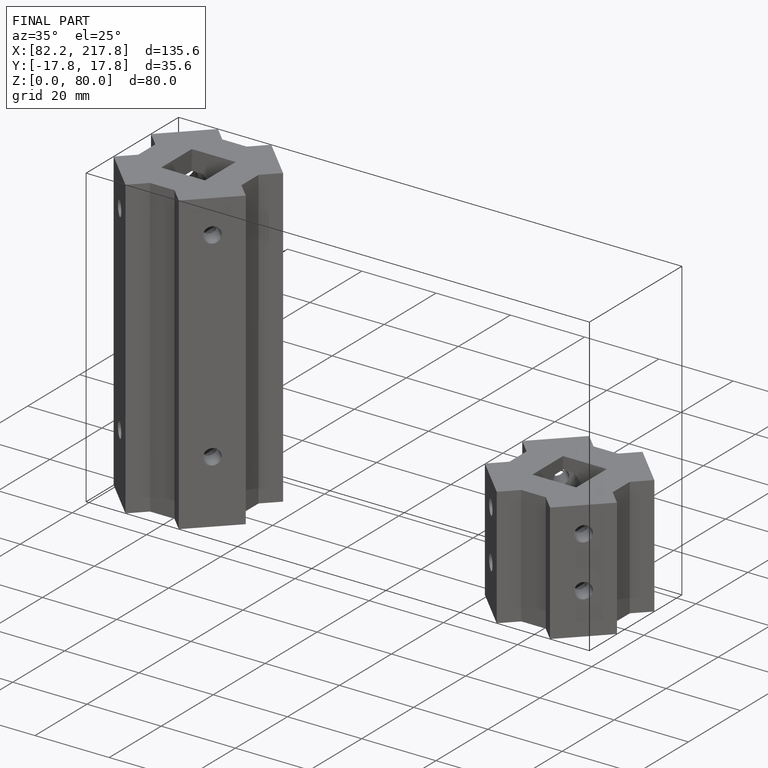
[diagram: finished part — iso view with bounding-box wireframe]
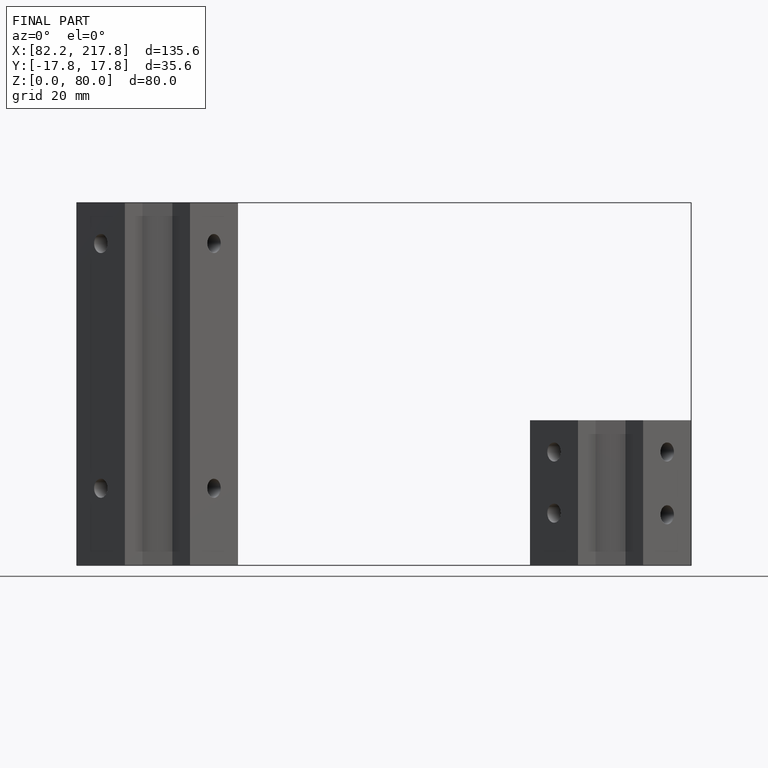
[diagram: finished part — front view with bounding-box wireframe]
